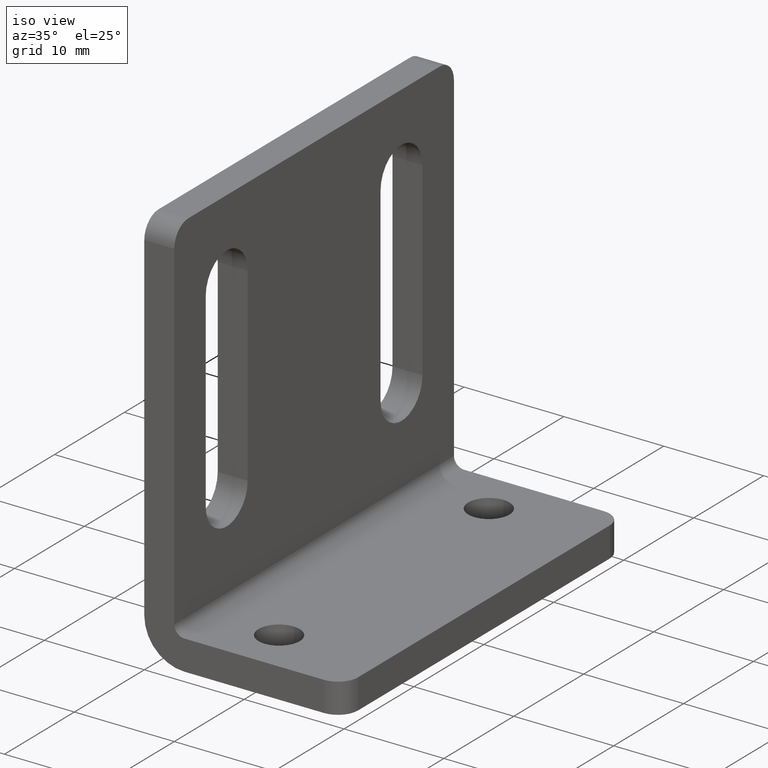
[diagram: clean part render]
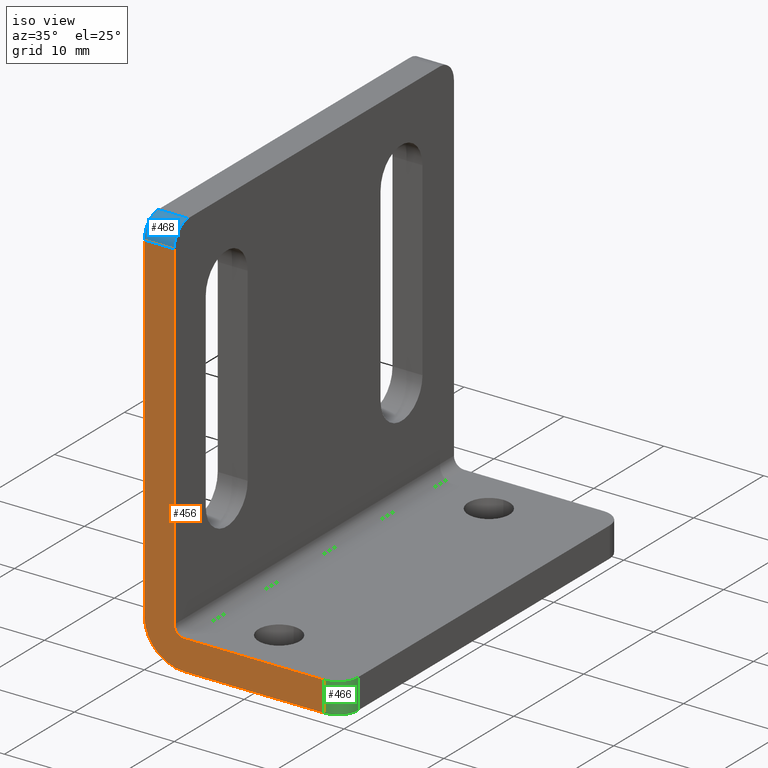
[diagram: same view with three faces highlighted in distinct colors, each labeled with its STEP entity id]
A machine part, iso view with three faces highlighted in distinct colors.
Their STEP definitions:

[orange] entity #456 — the highlighted planar face has unit normal (0, -1, 0).
#17=LINE('',#677,#57);
#23=LINE('',#702,#63);
#33=LINE('',#734,#73);
#42=LINE('',#757,#82);
#45=LINE('',#767,#85);
#46=LINE('',#769,#86);
#57=VECTOR('',#539,34.);
#63=VECTOR('',#559,34.);
#73=VECTOR('',#585,14.);
#82=VECTOR('',#602,14.);
#85=VECTOR('',#619,3.00000000000001);
#86=VECTOR('',#622,3.);
#102=PLANE('',#504);
#126=FACE_OUTER_BOUND('',#160,.T.);
#160=EDGE_LOOP('',(#371,#372,#373,#374,#375,#376,#377,#378));
#197=CIRCLE('',#505,4.);
#198=CIRCLE('',#506,1.);
#205=VERTEX_POINT('',#674);
#206=VERTEX_POINT('',#676);
#217=VERTEX_POINT('',#700);
#218=VERTEX_POINT('',#701);
#231=VERTEX_POINT('',#732);
#232=VERTEX_POINT('',#733);
#241=VERTEX_POINT('',#754);
#242=VERTEX_POINT('',#756);
#249=EDGE_CURVE('',#206,#205,#17,.T.);
#261=EDGE_CURVE('',#217,#218,#23,.T.);
#277=EDGE_CURVE('',#231,#232,#33,.T.);
#288=EDGE_CURVE('',#242,#241,#42,.T.);
#295=EDGE_CURVE('',#205,#231,#197,.T.);
#296=EDGE_CURVE('',#232,#242,#45,.T.);
#297=EDGE_CURVE('',#241,#217,#198,.T.);
#298=EDGE_CURVE('',#218,#206,#46,.T.);
#371=ORIENTED_EDGE('',*,*,#249,.T.);
#372=ORIENTED_EDGE('',*,*,#295,.T.);
#373=ORIENTED_EDGE('',*,*,#277,.T.);
#374=ORIENTED_EDGE('',*,*,#296,.T.);
#375=ORIENTED_EDGE('',*,*,#288,.T.);
#376=ORIENTED_EDGE('',*,*,#297,.T.);
#377=ORIENTED_EDGE('',*,*,#261,.T.);
#378=ORIENTED_EDGE('',*,*,#298,.T.);
#456=ADVANCED_FACE('',(#126),#102,.T.);
#504=AXIS2_PLACEMENT_3D('',#765,#615,#616);
#505=AXIS2_PLACEMENT_3D('',#766,#617,#618);
#506=AXIS2_PLACEMENT_3D('',#768,#620,#621);
#539=DIRECTION('',(0.,0.,-1.));
#559=DIRECTION('',(0.,0.,1.));
#585=DIRECTION('',(1.,0.,0.));
#602=DIRECTION('',(-1.,0.,0.));
#615=DIRECTION('center_axis',(0.,-1.,0.));
#616=DIRECTION('ref_axis',(0.,0.,-1.));
#617=DIRECTION('center_axis',(0.,-1.,0.));
#618=DIRECTION('ref_axis',(0.,0.,-1.));
#619=DIRECTION('',(0.,0.,1.));
#620=DIRECTION('center_axis',(0.,1.,0.));
#621=DIRECTION('ref_axis',(0.,0.,-1.));
#622=DIRECTION('',(-1.,0.,0.));
#674=CARTESIAN_POINT('',(-20.,-20.,4.00000000000001));
#676=CARTESIAN_POINT('',(-20.,-20.,38.));
#677=CARTESIAN_POINT('',(-20.,-20.,38.));
#700=CARTESIAN_POINT('',(-17.,-20.,4.00000000000001));
#701=CARTESIAN_POINT('',(-17.,-20.,38.));
#702=CARTESIAN_POINT('',(-17.,-20.,4.00000000000001));
#732=CARTESIAN_POINT('',(-16.,-20.,-9.797174E-16));
#733=CARTESIAN_POINT('',(-2.,-20.,-1.224647E-16));
#734=CARTESIAN_POINT('',(-16.,-20.,-9.797174E-16));
#754=CARTESIAN_POINT('',(-16.,-20.,3.00000000000001));
#756=CARTESIAN_POINT('',(-2.,-20.,3.00000000000001));
#757=CARTESIAN_POINT('',(-2.,-20.,3.00000000000001));
#765=CARTESIAN_POINT('Origin',(-20.9,-20.,39.9));
#766=CARTESIAN_POINT('Origin',(-16.,-20.,4.00000000000001));
#767=CARTESIAN_POINT('',(-2.,-20.,-1.224647E-16));
#768=CARTESIAN_POINT('Origin',(-16.,-20.,4.00000000000001));
#769=CARTESIAN_POINT('',(-17.,-20.,38.));

[blue] entity #468 — the highlighted cylindrical surface (edge-blend (fillet) strip) has radius 2 mm, axis along (-1, 0, 0).
#31=LINE('',#729,#71);
#46=LINE('',#769,#86);
#71=VECTOR('',#581,3.);
#86=VECTOR('',#622,3.);
#138=FACE_OUTER_BOUND('',#172,.T.);
#172=EDGE_LOOP('',(#423,#424,#425,#426));
#179=CIRCLE('',#480,2.);
#186=CIRCLE('',#488,2.);
#206=VERTEX_POINT('',#676);
#207=VERTEX_POINT('',#678);
#218=VERTEX_POINT('',#701);
#222=VERTEX_POINT('',#709);
#250=EDGE_CURVE('',#206,#207,#179,.T.);
#266=EDGE_CURVE('',#222,#218,#186,.T.);
#275=EDGE_CURVE('',#207,#222,#31,.T.);
#298=EDGE_CURVE('',#218,#206,#46,.T.);
#423=ORIENTED_EDGE('',*,*,#266,.F.);
#424=ORIENTED_EDGE('',*,*,#275,.F.);
#425=ORIENTED_EDGE('',*,*,#250,.F.);
#426=ORIENTED_EDGE('',*,*,#298,.F.);
#444=CYLINDRICAL_SURFACE('',#518,2.);
#468=ADVANCED_FACE('',(#138),#444,.T.);
#480=AXIS2_PLACEMENT_3D('',#679,#540,#541);
#488=AXIS2_PLACEMENT_3D('',#711,#565,#566);
#518=AXIS2_PLACEMENT_3D('',#789,#653,#654);
#540=DIRECTION('center_axis',(-1.,0.,0.));
#541=DIRECTION('ref_axis',(0.,1.,0.));
#565=DIRECTION('center_axis',(1.,0.,0.));
#566=DIRECTION('ref_axis',(0.,-1.,0.));
#581=DIRECTION('',(1.,0.,0.));
#622=DIRECTION('',(-1.,0.,0.));
#653=DIRECTION('center_axis',(-1.,0.,0.));
#654=DIRECTION('ref_axis',(0.,1.,0.));
#676=CARTESIAN_POINT('',(-20.,-20.,38.));
#678=CARTESIAN_POINT('',(-20.,-18.,40.));
#679=CARTESIAN_POINT('Origin',(-20.,-18.,38.));
#701=CARTESIAN_POINT('',(-17.,-20.,38.));
#709=CARTESIAN_POINT('',(-17.,-18.,40.));
#711=CARTESIAN_POINT('Origin',(-17.,-18.,38.));
#729=CARTESIAN_POINT('',(-20.,-18.,40.));
#769=CARTESIAN_POINT('',(-17.,-20.,38.));
#789=CARTESIAN_POINT('Origin',(-16.99999999,-18.,38.));

[green] entity #466 — the highlighted cylindrical surface (edge-blend (fillet) strip) has radius 2 mm, axis along (0, 0, 1).
#39=LINE('',#749,#79);
#45=LINE('',#767,#85);
#79=VECTOR('',#597,3.00000000000001);
#85=VECTOR('',#619,3.00000000000001);
#136=FACE_OUTER_BOUND('',#170,.T.);
#170=EDGE_LOOP('',(#415,#416,#417,#418));
#192=CIRCLE('',#496,2.);
#193=CIRCLE('',#499,2.);
#232=VERTEX_POINT('',#733);
#236=VERTEX_POINT('',#741);
#238=VERTEX_POINT('',#747);
#242=VERTEX_POINT('',#756);
#282=EDGE_CURVE('',#236,#232,#192,.T.);
#285=EDGE_CURVE('',#238,#236,#39,.T.);
#289=EDGE_CURVE('',#242,#238,#193,.T.);
#296=EDGE_CURVE('',#232,#242,#45,.T.);
#415=ORIENTED_EDGE('',*,*,#282,.F.);
#416=ORIENTED_EDGE('',*,*,#285,.F.);
#417=ORIENTED_EDGE('',*,*,#289,.F.);
#418=ORIENTED_EDGE('',*,*,#296,.F.);
#442=CYLINDRICAL_SURFACE('',#516,2.);
#466=ADVANCED_FACE('',(#136),#442,.T.);
#496=AXIS2_PLACEMENT_3D('',#743,#591,#592);
#499=AXIS2_PLACEMENT_3D('',#758,#603,#604);
#516=AXIS2_PLACEMENT_3D('',#787,#649,#650);
#591=DIRECTION('center_axis',(0.,0.,-1.));
#592=DIRECTION('ref_axis',(0.,1.,0.));
#597=DIRECTION('',(0.,0.,-1.));
#603=DIRECTION('center_axis',(0.,0.,1.));
#604=DIRECTION('ref_axis',(0.,-1.,0.));
#619=DIRECTION('',(0.,0.,1.));
#649=DIRECTION('center_axis',(0.,0.,1.));
#650=DIRECTION('ref_axis',(-0.707106781186548,0.707106781186547,0.));
#733=CARTESIAN_POINT('',(-2.,-20.,-1.224647E-16));
#741=CARTESIAN_POINT('',(1.102182E-15,-18.,6.748919E-32));
#743=CARTESIAN_POINT('Origin',(-2.,-18.,-1.224647E-16));
#747=CARTESIAN_POINT('',(9.184851E-16,-18.,3.00000000000001));
#749=CARTESIAN_POINT('',(9.184851E-16,-18.,3.00000000000001));
#756=CARTESIAN_POINT('',(-2.,-20.,3.00000000000001));
#758=CARTESIAN_POINT('Origin',(-2.,-18.,3.00000000000001));
#767=CARTESIAN_POINT('',(-2.,-20.,-1.224647E-16));
#787=CARTESIAN_POINT('Origin',(-2.,-18.,-1.0000004E-8));